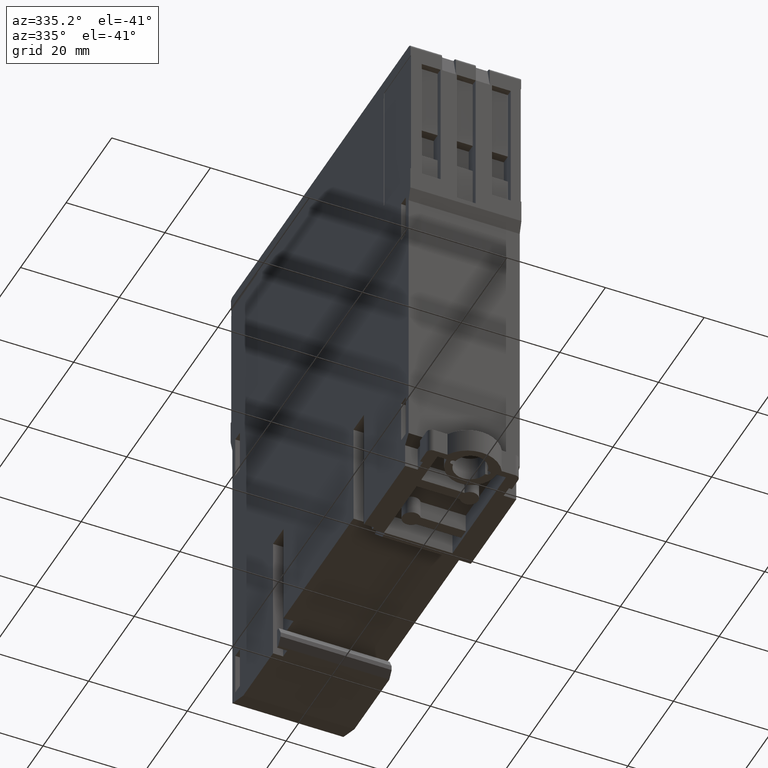
[diagram: clean part render]
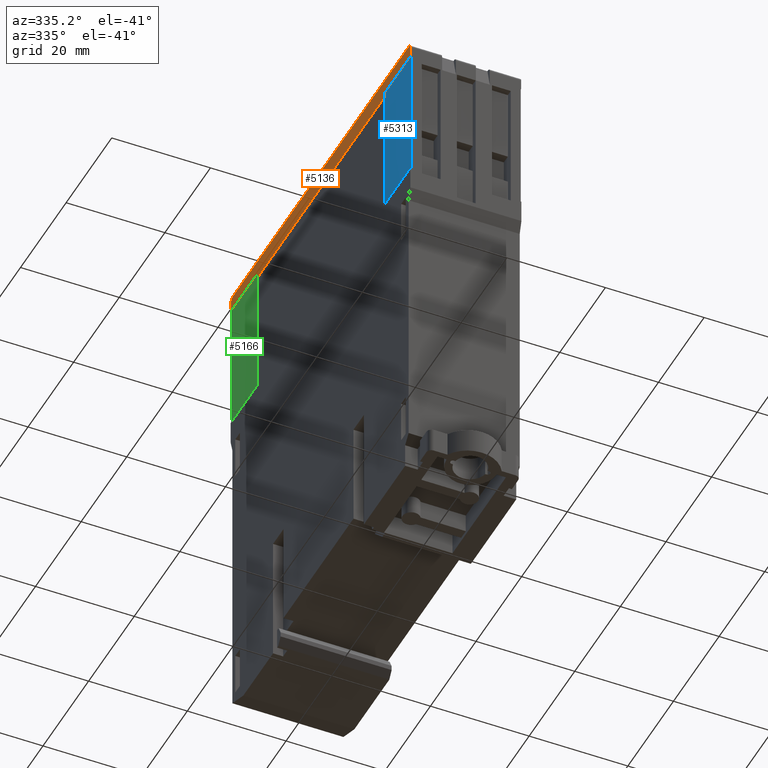
[diagram: same view with three faces highlighted in distinct colors, each labeled with its STEP entity id]
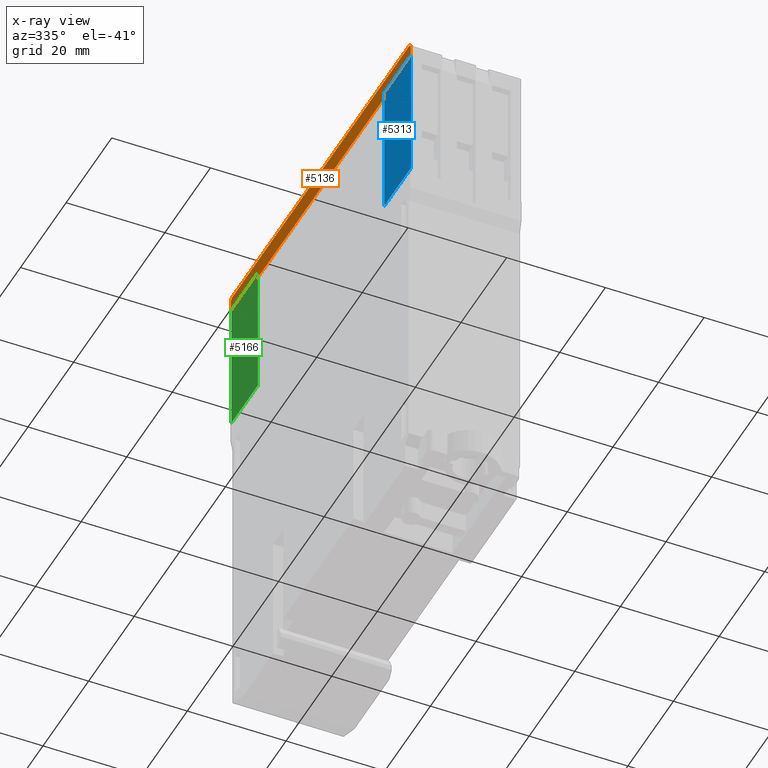
[diagram: x-ray of the same camera — body ghosted, the three highlighted faces saturated]
A machine part, auxiliary view with three faces highlighted in distinct colors.
The next image is the same camera in x-ray (body ghosted, the three faces saturated) — at least one of them is partly hidden behind the body in this view.
Their STEP definitions:

[orange] entity #5136 — the highlighted planar face has unit normal (1, 0, 0).
#920=DIRECTION('',(0.E0,0.E0,1.E0));
#921=VECTOR('',#920,2.032E0);
#922=CARTESIAN_POINT('',(-1.144634128902E1,3.936228004937E1,9.822338632683E1));
#923=LINE('',#922,#921);
#1022=DIRECTION('',(0.E0,-1.E0,0.E0));
#1023=VECTOR('',#1022,5.080000000017E-2);
#1024=CARTESIAN_POINT('',(-1.144634128902E1,3.941308004937E1,1.002553863268E2));
#1025=LINE('',#1024,#1023);
#1026=CARTESIAN_POINT('',(-1.144634128902E1,3.865108004937E1,1.002553863268E2));
#1027=DIRECTION('',(-1.E0,0.E0,0.E0));
#1028=DIRECTION('',(0.E0,7.071067811865E-1,7.071067811865E-1));
#1029=AXIS2_PLACEMENT_3D('',#1026,#1027,#1028);
#1031=CARTESIAN_POINT('',(-1.144634128902E1,3.865108004937E1,1.002553863268E2));
#1032=DIRECTION('',(-1.E0,0.E0,0.E0));
#1033=DIRECTION('',(0.E0,2.797412345512E-13,1.E0));
#1034=AXIS2_PLACEMENT_3D('',#1031,#1032,#1033);
#1036=DIRECTION('',(0.E0,1.E0,0.E0));
#1037=VECTOR('',#1036,7.727599999999E1);
#1038=CARTESIAN_POINT('',(-1.144634128902E1,-3.862491995062E1,
1.010173863268E2));
#1039=LINE('',#1038,#1037);
#1040=CARTESIAN_POINT('',(-1.144634128902E1,-3.862491995062E1,
1.002553863268E2));
#1041=DIRECTION('',(-1.E0,0.E0,0.E0));
#1042=DIRECTION('',(0.E0,-7.071067811865E-1,7.071067811866E-1));
#1043=AXIS2_PLACEMENT_3D('',#1040,#1041,#1042);
#1045=CARTESIAN_POINT('',(-1.144634128902E1,-3.862491995062E1,
1.002553863268E2));
#1046=DIRECTION('',(-1.E0,0.E0,0.E0));
#1047=DIRECTION('',(0.E0,-1.E0,2.909308839333E-12));
#1048=AXIS2_PLACEMENT_3D('',#1045,#1046,#1047);
#1050=DIRECTION('',(0.E0,1.E0,0.E0));
#1051=VECTOR('',#1050,1.16332E1);
#1052=CARTESIAN_POINT('',(-1.144634128902E1,2.772908004937E1,9.822338632683E1));
#1053=LINE('',#1052,#1051);
#1074=DIRECTION('',(0.E0,0.E0,1.E0));
#1075=VECTOR('',#1074,1.27E0);
#1076=CARTESIAN_POINT('',(-1.144634128902E1,2.772908004937E1,9.695338632683E1));
#1077=LINE('',#1076,#1075);
#1078=DIRECTION('',(0.E0,1.E0,0.E0));
#1079=VECTOR('',#1078,5.543199999999E1);
#1080=CARTESIAN_POINT('',(-1.144634128902E1,-2.770291995062E1,
9.695338632683E1));
#1081=LINE('',#1080,#1079);
#1094=DIRECTION('',(0.E0,0.E0,-1.E0));
#1095=VECTOR('',#1094,1.27E0);
#1096=CARTESIAN_POINT('',(-1.144634128902E1,-2.770291995062E1,
9.822338632683E1));
#1097=LINE('',#1096,#1095);
#1106=DIRECTION('',(0.E0,4.895471604645E-14,-1.E0));
#1107=VECTOR('',#1106,2.032000000001E0);
#1108=CARTESIAN_POINT('',(-1.144634128902E1,-3.938691995062E1,
1.002553863268E2));
#1109=LINE('',#1108,#1107);
#1218=DIRECTION('',(0.E0,1.E0,0.E0));
#1219=VECTOR('',#1218,1.1684E1);
#1220=CARTESIAN_POINT('',(-1.144634128902E1,-3.938691995062E1,
9.822338632683E1));
#1221=LINE('',#1220,#1219);
#3397=CARTESIAN_POINT('',(-1.144634128902E1,2.772908004937E1,9.695338632683E1));
#3398=VERTEX_POINT('',#3397);
#3455=CARTESIAN_POINT('',(-1.144634128902E1,-2.770291995062E1,
9.695338632683E1));
#3456=VERTEX_POINT('',#3455);
#3457=CARTESIAN_POINT('',(-1.144634128902E1,-3.938691995062E1,
9.822338632683E1));
#3458=VERTEX_POINT('',#3457);
#3487=CARTESIAN_POINT('',(-1.144634128902E1,-3.862491995062E1,
1.010173863268E2));
#3488=VERTEX_POINT('',#3487);
#3495=CARTESIAN_POINT('',(-1.144634128902E1,2.772908004937E1,9.822338632683E1));
#3496=VERTEX_POINT('',#3495);
#3531=CARTESIAN_POINT('',(-1.144634128902E1,-2.770291995062E1,
9.822338632683E1));
#3532=VERTEX_POINT('',#3531);
#3533=CARTESIAN_POINT('',(-1.144634128902E1,-3.938691995062E1,
1.002553863268E2));
#3534=VERTEX_POINT('',#3533);
#3565=CARTESIAN_POINT('',(-1.144634128902E1,3.865108004937E1,1.010173863268E2));
#3566=VERTEX_POINT('',#3565);
#3573=CARTESIAN_POINT('',(-1.144634128902E1,3.936228004937E1,9.822338632683E1));
#3574=VERTEX_POINT('',#3573);
#3635=CARTESIAN_POINT('',(-1.144634128902E1,-3.916373531789E1,
1.007942016941E2));
#3636=VERTEX_POINT('',#3635);
#3641=CARTESIAN_POINT('',(-1.144634128902E1,3.936228004937E1,1.002553863268E2));
#3642=VERTEX_POINT('',#3641);
#3701=CARTESIAN_POINT('',(-1.144634128902E1,3.918989541663E1,1.007942016941E2));
#3702=CARTESIAN_POINT('',(-1.144634128902E1,3.941308004937E1,1.002553863268E2));
#3703=VERTEX_POINT('',#3701);
#3704=VERTEX_POINT('',#3702);
#5107=CARTESIAN_POINT('',(-1.144634128902E1,4.335308004937E1,9.675018632683E1));
#5108=DIRECTION('',(1.E0,0.E0,0.E0));
#5109=DIRECTION('',(0.E0,0.E0,-1.E0));
#5110=AXIS2_PLACEMENT_3D('',#5107,#5108,#5109);
#5111=PLANE('',#5110);
#5113=ORIENTED_EDGE('',*,*,#5112,.T.);
#5114=ORIENTED_EDGE('',*,*,#4905,.T.);
#5115=ORIENTED_EDGE('',*,*,#5084,.F.);
#5116=ORIENTED_EDGE('',*,*,#5095,.F.);
#5117=ORIENTED_EDGE('',*,*,#5102,.F.);
#5119=ORIENTED_EDGE('',*,*,#5118,.F.);
#5121=ORIENTED_EDGE('',*,*,#5120,.F.);
#5123=ORIENTED_EDGE('',*,*,#5122,.F.);
#5125=ORIENTED_EDGE('',*,*,#5124,.T.);
#5127=ORIENTED_EDGE('',*,*,#5126,.T.);
#5129=ORIENTED_EDGE('',*,*,#5128,.T.);
#5131=ORIENTED_EDGE('',*,*,#5130,.T.);
#5133=ORIENTED_EDGE('',*,*,#5132,.T.);
#5134=EDGE_LOOP('',(#5113,#5114,#5115,#5116,#5117,#5119,#5121,#5123,#5125,#5127,
#5129,#5131,#5133));
#5135=FACE_OUTER_BOUND('',#5134,.F.);
#5136=ADVANCED_FACE('',(#5135),#5111,.F.);
#1030=CIRCLE('',#1029,7.62E-1);
#1035=CIRCLE('',#1034,7.62E-1);
#1044=CIRCLE('',#1043,7.62E-1);
#1049=CIRCLE('',#1048,7.62E-1);
#4905=EDGE_CURVE('',#3574,#3642,#923,.T.);
#5084=EDGE_CURVE('',#3704,#3642,#1025,.T.);
#5095=EDGE_CURVE('',#3703,#3704,#1030,.T.);
#5102=EDGE_CURVE('',#3566,#3703,#1035,.T.);
#5112=EDGE_CURVE('',#3496,#3574,#1053,.T.);
#5118=EDGE_CURVE('',#3488,#3566,#1039,.T.);
#5120=EDGE_CURVE('',#3636,#3488,#1044,.T.);
#5122=EDGE_CURVE('',#3534,#3636,#1049,.T.);
#5124=EDGE_CURVE('',#3534,#3458,#1109,.T.);
#5126=EDGE_CURVE('',#3458,#3532,#1221,.T.);
#5128=EDGE_CURVE('',#3532,#3456,#1097,.T.);
#5130=EDGE_CURVE('',#3456,#3398,#1081,.T.);
#5132=EDGE_CURVE('',#3398,#3496,#1077,.T.);

[blue] entity #5313 — the highlighted planar face has unit normal (1, 0, 0).
#1202=DIRECTION('',(0.E0,1.E0,0.E0));
#1203=VECTOR('',#1202,1.1684E1);
#1204=CARTESIAN_POINT('',(-1.137014128902E1,-3.938691995062E1,
9.822338632683E1));
#1205=LINE('',#1204,#1203);
#1206=DIRECTION('',(0.E0,0.E0,1.E0));
#1207=VECTOR('',#1206,2.7432E1);
#1208=CARTESIAN_POINT('',(-1.137014128902E1,-3.938691995062E1,
7.079138632683E1));
#1209=LINE('',#1208,#1207);
#1210=DIRECTION('',(0.E0,-1.E0,0.E0));
#1211=VECTOR('',#1210,1.1684E1);
#1212=CARTESIAN_POINT('',(-1.137014128902E1,-2.770291995062E1,
7.079138632683E1));
#1213=LINE('',#1212,#1211);
#1214=DIRECTION('',(0.E0,0.E0,-1.E0));
#1215=VECTOR('',#1214,2.7432E1);
#1216=CARTESIAN_POINT('',(-1.137014128902E1,-2.770291995062E1,
9.822338632683E1));
#1217=LINE('',#1216,#1215);
#3309=CARTESIAN_POINT('',(-1.137014128902E1,-3.938691995062E1,
7.079138632683E1));
#3310=VERTEX_POINT('',#3309);
#3373=CARTESIAN_POINT('',(-1.137014128902E1,-2.770291995062E1,
7.079138632683E1));
#3374=VERTEX_POINT('',#3373);
#3375=CARTESIAN_POINT('',(-1.137014128902E1,-3.938691995062E1,
9.822338632683E1));
#3376=VERTEX_POINT('',#3375);
#3529=CARTESIAN_POINT('',(-1.137014128902E1,-2.770291995062E1,
9.822338632683E1));
#3530=VERTEX_POINT('',#3529);
#5301=CARTESIAN_POINT('',(-1.137014128902E1,1.308004937222E-2,
5.051738632683E1));
#5302=DIRECTION('',(1.E0,0.E0,0.E0));
#5303=DIRECTION('',(0.E0,0.E0,-1.E0));
#5304=AXIS2_PLACEMENT_3D('',#5301,#5302,#5303);
#5305=PLANE('',#5304);
#5307=ORIENTED_EDGE('',*,*,#5306,.F.);
#5308=ORIENTED_EDGE('',*,*,#5233,.F.);
#5309=ORIENTED_EDGE('',*,*,#5222,.F.);
#5310=ORIENTED_EDGE('',*,*,#5208,.F.);
#5311=EDGE_LOOP('',(#5307,#5308,#5309,#5310));
#5312=FACE_OUTER_BOUND('',#5311,.F.);
#5313=ADVANCED_FACE('',(#5312),#5305,.F.);
#5208=EDGE_CURVE('',#3530,#3374,#1217,.T.);
#5222=EDGE_CURVE('',#3374,#3310,#1213,.T.);
#5233=EDGE_CURVE('',#3310,#3376,#1209,.T.);
#5306=EDGE_CURVE('',#3376,#3530,#1205,.T.);

[green] entity #5166 — the highlighted planar face has unit normal (1, 0, 0).
#780=DIRECTION('',(0.E0,0.E0,1.E0));
#781=VECTOR('',#780,2.6162E1);
#782=CARTESIAN_POINT('',(-1.137014128902E1,3.941308004937E1,7.079138632683E1));
#783=LINE('',#782,#781);
#892=DIRECTION('',(0.E0,-1.E0,0.E0));
#893=VECTOR('',#892,5.079999999997E-2);
#894=CARTESIAN_POINT('',(-1.137014128902E1,3.941308004937E1,9.695338632683E1));
#895=LINE('',#894,#893);
#928=DIRECTION('',(0.E0,0.E0,1.E0));
#929=VECTOR('',#928,1.27E0);
#930=CARTESIAN_POINT('',(-1.137014128902E1,3.936228004937E1,9.695338632683E1));
#931=LINE('',#930,#929);
#1054=DIRECTION('',(0.E0,1.E0,0.E0));
#1055=VECTOR('',#1054,1.16332E1);
#1056=CARTESIAN_POINT('',(-1.137014128902E1,2.772908004937E1,9.822338632683E1));
#1057=LINE('',#1056,#1055);
#1058=DIRECTION('',(0.E0,0.E0,1.E0));
#1059=VECTOR('',#1058,2.7432E1);
#1060=CARTESIAN_POINT('',(-1.137014128902E1,2.772908004937E1,7.079138632683E1));
#1061=LINE('',#1060,#1059);
#1062=DIRECTION('',(0.E0,-1.E0,0.E0));
#1063=VECTOR('',#1062,1.1684E1);
#1064=CARTESIAN_POINT('',(-1.137014128902E1,3.941308004937E1,7.079138632683E1));
#1065=LINE('',#1064,#1063);
#3153=CARTESIAN_POINT('',(-1.137014128902E1,3.941308004937E1,7.079138632683E1));
#3154=VERTEX_POINT('',#3153);
#3205=CARTESIAN_POINT('',(-1.137014128902E1,3.941308004937E1,9.695338632683E1));
#3206=VERTEX_POINT('',#3205);
#3255=CARTESIAN_POINT('',(-1.137014128902E1,2.772908004937E1,7.079138632683E1));
#3256=VERTEX_POINT('',#3255);
#3329=CARTESIAN_POINT('',(-1.137014128902E1,3.936228004937E1,9.695338632683E1));
#3330=VERTEX_POINT('',#3329);
#3393=CARTESIAN_POINT('',(-1.137014128902E1,2.772908004937E1,9.822338632683E1));
#3394=VERTEX_POINT('',#3393);
#3395=CARTESIAN_POINT('',(-1.137014128902E1,3.936228004937E1,9.822338632683E1));
#3396=VERTEX_POINT('',#3395);
#5151=CARTESIAN_POINT('',(-1.137014128902E1,3.999728004937E1,6.941978632683E1));
#5152=DIRECTION('',(1.E0,0.E0,0.E0));
#5153=DIRECTION('',(0.E0,0.E0,-1.E0));
#5154=AXIS2_PLACEMENT_3D('',#5151,#5152,#5153);
#5155=PLANE('',#5154);
#5156=ORIENTED_EDGE('',*,*,#4884,.T.);
#5157=ORIENTED_EDGE('',*,*,#4909,.T.);
#5158=ORIENTED_EDGE('',*,*,#5142,.F.);
#5160=ORIENTED_EDGE('',*,*,#5159,.F.);
#5162=ORIENTED_EDGE('',*,*,#5161,.F.);
#5163=ORIENTED_EDGE('',*,*,#4794,.T.);
#5164=EDGE_LOOP('',(#5156,#5157,#5158,#5160,#5162,#5163));
#5165=FACE_OUTER_BOUND('',#5164,.F.);
#5166=ADVANCED_FACE('',(#5165),#5155,.F.);
#4794=EDGE_CURVE('',#3154,#3206,#783,.T.);
#4884=EDGE_CURVE('',#3206,#3330,#895,.T.);
#4909=EDGE_CURVE('',#3330,#3396,#931,.T.);
#5142=EDGE_CURVE('',#3394,#3396,#1057,.T.);
#5159=EDGE_CURVE('',#3256,#3394,#1061,.T.);
#5161=EDGE_CURVE('',#3154,#3256,#1065,.T.);